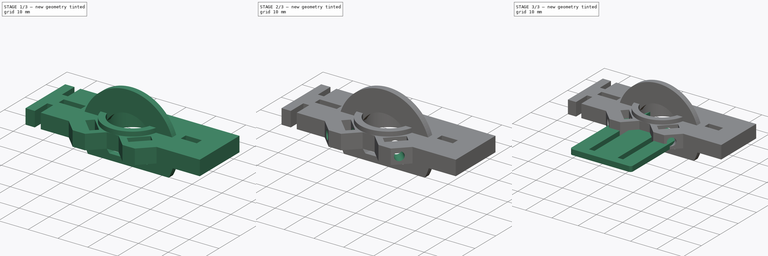
[diagram: build sequence overview — one tinted view per stage of 3, left to right]
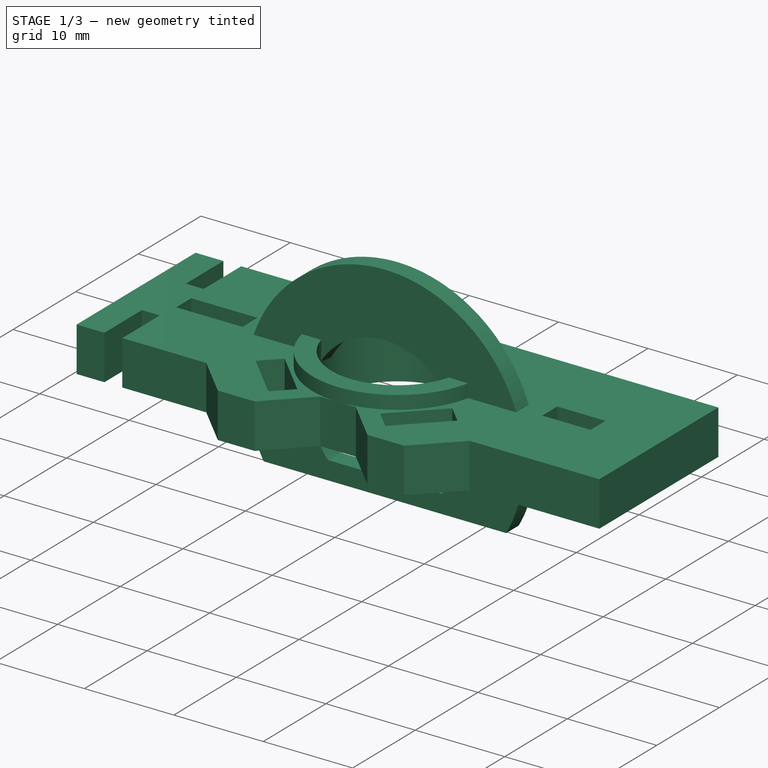
[diagram: stage 1 of 3 — iso view after this stage's code; geometry added in this stage tinted green]
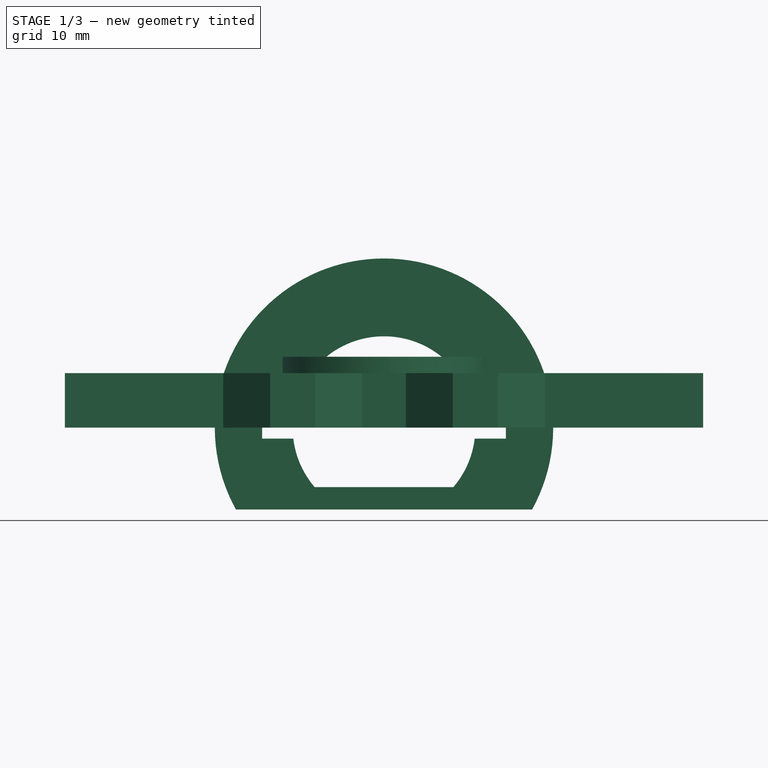
[diagram: stage 1 of 3 — front view after this stage's code; geometry added in this stage tinted green]
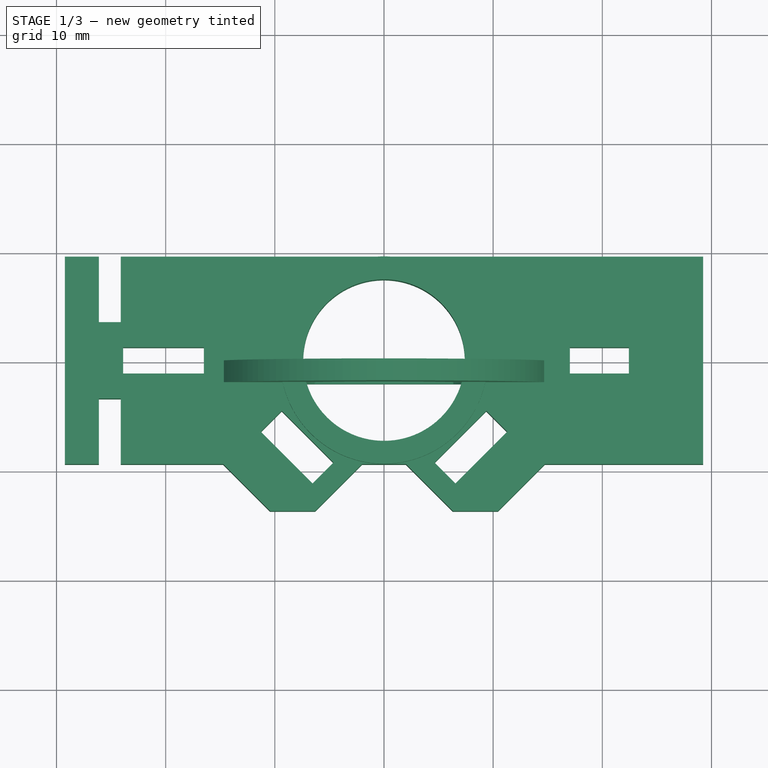
[diagram: stage 1 of 3 — top view after this stage's code; geometry added in this stage tinted green]
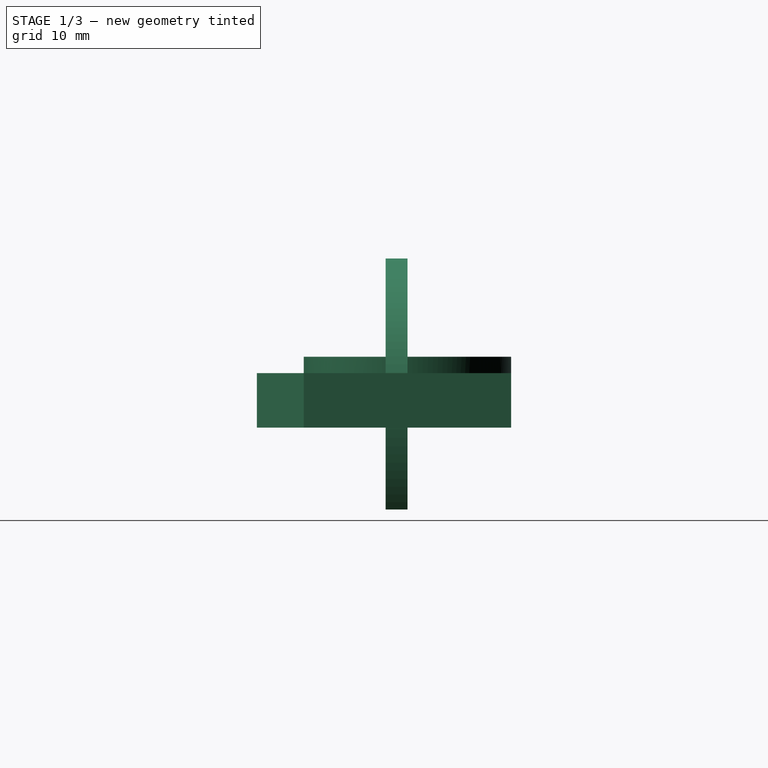
[diagram: stage 1 of 3 — right view after this stage's code; geometry added in this stage tinted green]
FCSTD DOCUMENT  (FreeCAD 0.19R24291 (Git))
Label: gilson_tip_probe
License: All rights reserved
LicenseURL: http://en.wikipedia.org/wiki/All_rights_reserved
objects: Sketcher::SketchObject×6, PartDesign::Pad×4, PartDesign::Body×3, PartDesign::Pocket×2, PartDesign::Fillet×1, PartDesign::PolarPattern×1
note: 24 computed .brp shape members not serialized (recipe doc carries the construction recipe); baked Part::Feature solids carry a one-line shape summary decoded from their .brp

FEATURE [PartDesign::Body] Body  label="holder_optostop"
  Group = -> [Sketch,Pad,Fillet]
  Origin = -> Origin
  Tip = -> Fillet
FEATURE [Sketcher::SketchObject] Sketch001
  FullyConstrained = true
  MapMode = 5
  Support = -> [XY_Plane001]
  sketch-geometry (46):
    g0: LineSegment StartX=-29.23 StartY=9.5 StartZ=0 EndX=29.23 EndY=9.5 EndZ=0
    g1: LineSegment StartX=29.23 StartY=9.5 StartZ=0 EndX=29.23 EndY=-9.5 EndZ=0
    g2: LineSegment StartX=29.23 StartY=-9.5 StartZ=0 EndX=-29.23 EndY=-9.5 EndZ=0
    g3: LineSegment StartX=-29.23 StartY=-9.5 StartZ=0 EndX=-29.23 EndY=9.5 EndZ=0
    g4: Circle CenterX=0 CenterY=0 CenterZ=0 NormalX=0 NormalY=0 NormalZ=1 AngleXU=0 Radius=7.4
    g5: LineSegment StartX=0 StartY=0 StartZ=0 EndX=12.114 EndY=-12.114 EndZ=0
    g6: LineSegment StartX=14.7279 StartY=-9.5 StartZ=0 EndX=8.36396 EndY=-15.864 EndZ=0
    g7: LineSegment StartX=8.36396 StartY=-15.864 StartZ=0 EndX=2 EndY=-9.5 EndZ=0
    g8: LineSegment StartX=-2 StartY=-9.5 StartZ=0 EndX=-8.36396 EndY=-15.864 EndZ=0
    g9: LineSegment StartX=-8.36396 StartY=-15.864 StartZ=0 EndX=-14.7279 EndY=-9.5 EndZ=0
    g10: LineSegment StartX=-8.36396 StartY=-15.864 StartZ=0 EndX=-14.7279 EndY=-9.5 EndZ=0
    g11: LineSegment StartX=-2 StartY=-9.5 StartZ=0 EndX=2 EndY=-9.5 EndZ=0
    g12: LineSegment StartX=14.7279 StartY=-9.5 StartZ=0 EndX=29.23 EndY=-9.5 EndZ=0
    g13: LineSegment StartX=4.63155 StartY=-9.36916 StartZ=0 EndX=9.36916 EndY=-4.63155 EndZ=0
    g14: LineSegment StartX=9.36916 StartY=-4.63155 StartZ=0 EndX=11.2784 EndY=-6.54074 EndZ=0
    g15: LineSegment StartX=11.2784 StartY=-6.54074 StartZ=0 EndX=6.54074 EndY=-11.2784 EndZ=0
    g16: LineSegment StartX=6.54074 StartY=-11.2784 StartZ=0 EndX=4.63155 EndY=-9.36916 EndZ=0
    g17: LineSegment StartX=5.23259 StartY=-5.23259 StartZ=0 EndX=7.00036 EndY=-7.00036 EndZ=0
    g18: LineSegment StartX=-9.36916 StartY=-4.63155 StartZ=0 EndX=-4.63155 EndY=-9.36916 EndZ=0
    g19: LineSegment StartX=-4.63155 StartY=-9.36916 StartZ=0 EndX=-6.54074 EndY=-11.2784 EndZ=0
    g20: LineSegment StartX=-6.54074 StartY=-11.2784 StartZ=0 EndX=-11.2784 EndY=-6.54074 EndZ=0
    g21: LineSegment StartX=-11.2784 StartY=-6.54074 StartZ=0 EndX=-9.36916 EndY=-4.63155 EndZ=0
    g22: LineSegment StartX=17.03 StartY=1.2 StartZ=0 EndX=22.43 EndY=1.2 EndZ=0
    g23: LineSegment StartX=22.43 StartY=1.2 StartZ=0 EndX=22.43 EndY=-1.2 EndZ=0
    g24: LineSegment StartX=22.43 StartY=-1.2 StartZ=0 EndX=17.03 EndY=-1.2 EndZ=0
    g25: LineSegment StartX=17.03 StartY=-1.2 StartZ=0 EndX=17.03 EndY=1.2 EndZ=0
    g26: LineSegment StartX=-23.9 StartY=1.2 StartZ=0 EndX=-16.5 EndY=1.2 EndZ=0
    g27: LineSegment StartX=-16.5 StartY=1.2 StartZ=0 EndX=-16.5 EndY=-1.2 EndZ=0
    g28: LineSegment StartX=-16.5 StartY=-1.2 StartZ=0 EndX=-23.9 EndY=-1.2 EndZ=0
    g29: LineSegment StartX=-23.9 StartY=-1.2 StartZ=0 EndX=-23.9 EndY=1.2 EndZ=0
    g30: LineSegment StartX=-29.23 StartY=9.5 StartZ=0 EndX=-26.12 EndY=9.5 EndZ=0
    g31: LineSegment StartX=-26.12 StartY=9.5 StartZ=0 EndX=-26.12 EndY=3.5 EndZ=0
    g32: LineSegment StartX=-26.12 StartY=3.5 StartZ=0 EndX=-24.12 EndY=3.5 EndZ=0
    g33: LineSegment StartX=-24.12 StartY=3.5 StartZ=0 EndX=-24.12 EndY=9.5 EndZ=0
    g34: LineSegment StartX=-24.12 StartY=9.5 StartZ=0 EndX=29.23 EndY=9.5 EndZ=0
    g35: LineSegment StartX=-29.23 StartY=-9.5 StartZ=0 EndX=-26.12 EndY=-9.5 EndZ=0
    g36: LineSegment StartX=-26.12 StartY=-9.5 StartZ=0 EndX=-26.12 EndY=-3.5 EndZ=0
    g37: LineSegment StartX=-26.12 StartY=-3.5 StartZ=0 EndX=-24.12 EndY=-3.5 EndZ=0
    g38: LineSegment StartX=-24.12 StartY=-3.5 StartZ=0 EndX=-24.12 EndY=-9.5 EndZ=0
    g39: LineSegment StartX=-24.12 StartY=-9.5 StartZ=0 EndX=-14.7279 EndY=-9.5 EndZ=0
    g40: LineSegment StartX=6.3 StartY=-13.8 StartZ=0 EndX=10.4279 EndY=-13.8 EndZ=0
    g41: LineSegment StartX=10.4279 StartY=-13.8 StartZ=0 EndX=14.7279 EndY=-9.5 EndZ=0
    g42: LineSegment StartX=6.3 StartY=-13.8 StartZ=0 EndX=2 EndY=-9.5 EndZ=0
    g43: LineSegment StartX=-2 StartY=-9.5 StartZ=0 EndX=-6.3 EndY=-13.8 EndZ=0
    g44: LineSegment StartX=-6.3 StartY=-13.8 StartZ=0 EndX=-10.4279 EndY=-13.8 EndZ=0
    g45: LineSegment StartX=-10.4279 StartY=-13.8 StartZ=0 EndX=-14.7279 EndY=-9.5 EndZ=0
  constraints (129):
    c: Coincident(g0,g1)
    c: Coincident(g1,g2)
    c: Coincident(g2,g3)
    c: Coincident(g3,g0)
    c: Horizontal(g0)
    c: Horizontal(g2)
    c: Vertical(g1)
    c: Vertical(g3)
    c: Symmetric(g0,g2,g-1)
    c: DistanceY(g1,g1) = 19
    c: DistanceX(g0,g0) = 58.46
    c: Coincident(g4,g-1)
    c: Diameter(g4) = 14.8
    c: Coincident(g5,g4)
    c: Angle(g5) = -0.785398
    c: Coincident(g6,g7)
    c: PointOnObject(g7,g2)
    c: Coincident(g8,g9)
    c: Parallel(g8,g6)
    c: Parallel(g9,g7)
    c: Perpendicular(g5,g6) = 4.71239
    c: Perpendicular(g6,g7)
    c: Equal(g9,g6)
    c: Equal(g7,g8)
    c: Symmetric(g8,g7,g-2)
    c: Coincident(g10,g8)
    c: PointOnObject(g10,g2)
    c: PointOnObject(g10,g9)
    c: PointOnObject(g6,g2)
    c: Coincident(g11,g8)
    c: Coincident(g11,g7)
    c: Coincident(g12,g6)
    c: Coincident(g12,g1)
    c: Parallel(g8,g13)
    c: Coincident(g14,g13)
    c: Coincident(g15,g14)
    c: Coincident(g16,g15)
    c: Coincident(g16,g13)
    c: Parallel(g16,g14)
    c: Parallel(g14,g10)
    c: Distance(g15) = 6.7
    c: Distance(g14) = 2.7
    c: Symmetric(g14,g15,g5)
    c: PointOnObject(g17,g4)
    c: PointOnObject(g17,g13)
    c: PointOnObject(g17,g5)
    c: PointOnObject(g17,g5)
    c: Distance(g17) = 2.5
    c: Coincident(g18,g19)
    c: Coincident(g19,g20)
    c: Coincident(g20,g21)
    c: Coincident(g21,g18)
    c: Equal(g18,g20)
    c: Equal(g20,g13)
    c: Equal(g19,g21)
    c: Equal(g21,g16)
    c: Perpendicular(g19,g20)
    c: Parallel(g20,g10)
    c: Symmetric(g18,g13,g-2)
    c: Coincident(g22,g23)
    c: Coincident(g23,g24)
    c: Coincident(g24,g25)
    c: Coincident(g25,g22)
    c: Horizontal(g22)
    c: Horizontal(g24)
    c: Vertical(g23)
    c: DistanceX(g22,g22) = 5.4
    c: DistanceY(g23,g23) = 2.4
    c: Symmetric(g22,g24,g-1)
    c: DistanceX(g22,g0) = 6.8
    c: Coincident(g26,g27)
    c: Coincident(g27,g28)
    c: Coincident(g28,g29)
    c: Coincident(g29,g26)
    c: Horizontal(g26)
    c: Horizontal(g28)
    c: Equal(g23,g27) = 2.4
    c: DistanceX(g26,g26) = 7.4
    c: Vertical(g29)
    c: Symmetric(g26,g27,g-1)
    c: DistanceX(g0,g26) = 12.73
    c: DistanceX(g27,g4) = 16.5
    c: DistanceX(g4,g22) = 17.03
    c: Coincident(g3,g30)
    c: PointOnObject(g30,g0)
    c: Coincident(g30,g31)
    c: Vertical(g31)
    c: Coincident(g31,g32)
    c: Horizontal(g32)
    c: Coincident(g32,g33)
    c: PointOnObject(g33,g0)
    c: Vertical(g33)
    c: Coincident(g33,g34)
    c: Coincident(g34,g1)
    c: Coincident(g3,g35)
    c: PointOnObject(g35,g2)
    c: Coincident(g35,g36)
    c: Coincident(g36,g37)
    c: Horizontal(g37)
    c: Coincident(g37,g38)
    c: PointOnObject(g38,g2)
    c: Vertical(g38)
    c: Coincident(g38,g39)
    c: Coincident(g39,g10)
    c: Vertical(g36)
    c: Vertical(g36,g31)
    c: Symmetric(g37,g32,g-1)
    c: DistanceX(g37,g37) = 2
    c: DistanceY(g38,g38) = 6
    c: DistanceX(g3,g33) = 5.11
    c: DistanceX(g33,g4) = 24.12
    c: DistanceX(g11,g11) = 4
    c: PointOnObject(g40,g7)
    c: PointOnObject(g40,g6)
    c: Horizontal(g40)
    c: DistanceY(g40,g12) = 4.3
    c: Coincident(g41,g40)
    c: Coincident(g41,g12)
    c: Coincident(g42,g40)
    c: Coincident(g42,g11)
    c: Coincident(g43,g11)
    c: PointOnObject(g43,g8)
    c: Coincident(g44,g43)
    c: PointOnObject(g44,g9)
    c: Horizontal(g44)
    c: Coincident(g45,g44)
    c: Coincident(g45,g39)
    c: Horizontal(g43,g40)
    c: Distance(g6) = 9
FEATURE [PartDesign::Pad] Pad001
  Direction = (1,1,1)
  Length = 5
  Length2 = 100
  Profile = -> Sketch001
  Type = 0
FEATURE [Sketcher::SketchObject] Sketch002
  ExternalGeometry = -> [Sketch001]
  FullyConstrained = true
  MapMode = 5
  Support = -> [XY_Plane001]
  sketch-geometry (2):
    g0: Circle CenterX=0 CenterY=0 CenterZ=0 NormalX=0 NormalY=0 NormalZ=1 AngleXU=0 Radius=7.4
    g1: Circle CenterX=0 CenterY=0 CenterZ=0 NormalX=0 NormalY=0 NormalZ=1 AngleXU=0 Radius=9.5
  constraints (4):
    c: Coincident(g1,g0)
    c: Tangent(g1,g-4)
    c: Coincident(g0,g-1)
    c: Equal(g0,g-5)
FEATURE [PartDesign::Pad] Pad002
  BaseFeature = -> Pad001
  Direction = (1,1,1)
  Length = 6.5
  Length2 = 100
  Profile = -> Sketch002
  Type = 0
FEATURE [PartDesign::Body] Body001  label="gilson_probe_fastener"
  Group = -> [Sketch001,Pad001,Sketch002,Pad002,Sketch003,Pocket,PolarPattern,Sketch004,Pocket001]
  Origin = -> Origin001
  Tip = -> Pocket001
FEATURE [Sketcher::SketchObject] Sketch005
  FullyConstrained = true
  MapMode = 5
  Placement = pos=(0,0,0) rot=(1,0,0;1.5708rad)
  Support = -> [XZ_Plane002]
  sketch-geometry (17):
    g0: Circle CenterX=0 CenterY=0 CenterZ=0 NormalX=0 NormalY=0 NormalZ=1 AngleXU=0 Radius=15.5
    g1: Circle CenterX=0 CenterY=0 CenterZ=0 NormalX=0 NormalY=0 NormalZ=1 AngleXU=0 Radius=8.37
    g2: ArcOfCircle CenterX=0 CenterY=0 CenterZ=0 NormalX=0 NormalY=0 NormalZ=1 AngleXU=0 Radius=8.37 StartAngle=0.11976 EndAngle=3.02183
    g3: LineSegment StartX=-11.17 StartY=1 StartZ=0 EndX=-8.31005 EndY=1 EndZ=0
    g4: LineSegment StartX=-8.31005 StartY=1 StartZ=0 EndX=-8.31005 EndY=-1 EndZ=0
    g5: LineSegment StartX=-8.31005 StartY=-1 StartZ=0 EndX=-11.17 EndY=-1 EndZ=0
    g6: LineSegment StartX=-11.17 StartY=-1 StartZ=0 EndX=-11.17 EndY=1 EndZ=0
    g7: LineSegment StartX=11.17 StartY=1 StartZ=0 EndX=8.31005 EndY=1 EndZ=0
    g8: LineSegment StartX=8.31005 StartY=1 StartZ=0 EndX=8.31005 EndY=-1 EndZ=0
    g9: LineSegment StartX=8.31005 StartY=-1 StartZ=0 EndX=11.17 EndY=-1 EndZ=0
    g10: LineSegment StartX=11.17 StartY=-1 StartZ=0 EndX=11.17 EndY=1 EndZ=0
    g11: ArcOfCircle CenterX=0 CenterY=0 CenterZ=0 NormalX=0 NormalY=0 NormalZ=1 AngleXU=0 Radius=8.37 StartAngle=3.26135 EndAngle=3.85067
    g12: ArcOfCircle CenterX=0 CenterY=2e-16 CenterZ=0 NormalX=0 NormalY=0 NormalZ=1 AngleXU=0 Radius=8.37 StartAngle=5.57411 EndAngle=6.16342
    g13: GeomPoint X=0 Y=15.5 Z=0
    g14: ArcOfCircle CenterX=0 CenterY=0 CenterZ=0 NormalX=0 NormalY=0 NormalZ=1 AngleXU=0 Radius=15.5 StartAngle=5.77811 EndAngle=9.92985
    g15: LineSegment StartX=13.5647 StartY=-7.5 StartZ=0 EndX=-13.5647 EndY=-7.5 EndZ=0
    g16: LineSegment StartX=-6.35251 StartY=-5.45 StartZ=0 EndX=6.35251 EndY=-5.45 EndZ=0
  constraints (45):
    c: Coincident(g0,g-1)
    c: Diameter(g0) = 31
    c: Coincident(g1,g0)
    c: Diameter(g1) = 16.74
    c: Coincident(g2,g0)
    c: PointOnObject(g2,g1)
    c: Coincident(g3,g4)
    c: Coincident(g4,g5)
    c: Coincident(g5,g6)
    c: Coincident(g6,g3)
    c: Horizontal(g3)
    c: Horizontal(g5)
    c: Vertical(g6)
    c: Coincident(g7,g8)
    c: Coincident(g8,g9)
    c: Coincident(g9,g10)
    c: Coincident(g10,g7)
    c: Horizontal(g7)
    c: Horizontal(g9)
    c: Vertical(g10)
    c: Coincident(g7,g2)
    c: Coincident(g3,g2)
    c: Symmetric(g2,g8,g-1)
    c: Equal(g4,g8)
    c: Symmetric(g7,g3,g-2)
    c: DistanceX(g3,g7) = 22.34
    c: DistanceY(g6,g6) = 2
    c: Vertical(g4)
    c: Coincident(g11,g0)
    c: Coincident(g11,g5)
    c: PointOnObject(g12,g-2)
    c: Coincident(g12,g9)
    c: PointOnObject(g12,g1)
    c: PointOnObject(g13,g-2)
    c: PointOnObject(g13,g0)
    c: Coincident(g14,g2)
    c: PointOnObject(g14,g0)
    c: Horizontal(g15)
    c: Coincident(g15,g14)
    c: Coincident(g15,g14)
    c: DistanceY(g14,g13) = 23
    c: Coincident(g16,g11)
    c: Coincident(g16,g12)
    c: Horizontal(g16)
    c: DistanceY(g14,g12) = 2.05
FEATURE [PartDesign::Pad] Pad003
  Direction = (1,1,1)
  Length = 2
  Length2 = 100
  Placement = pos=(0,0,0) rot=(1,0,0;1.5708rad)
  Profile = -> Sketch005
  Type = 0
FEATURE [PartDesign::Body] Body002  label="probe_holder_rings"
  Group = -> [Sketch005,Pad003]
  Origin = -> Origin002
  Tip = -> Pad003
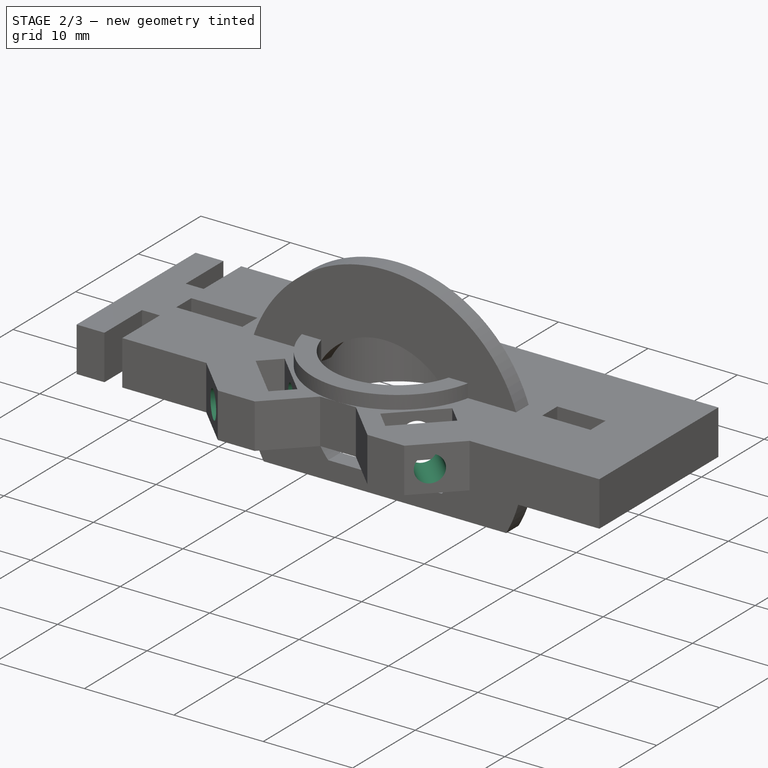
[diagram: stage 2 of 3 — iso view after this stage's code; geometry added in this stage tinted green]
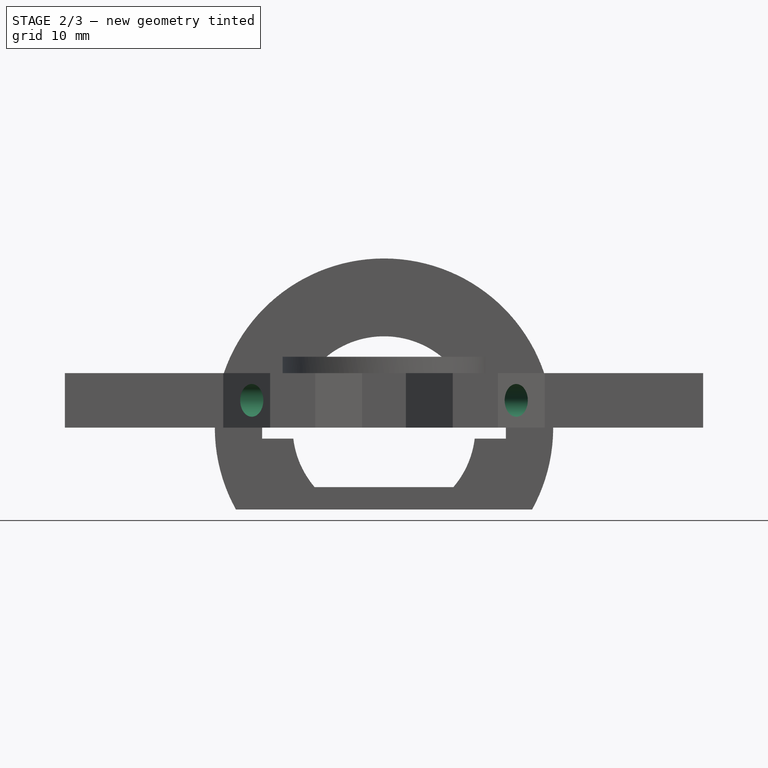
[diagram: stage 2 of 3 — front view after this stage's code; geometry added in this stage tinted green]
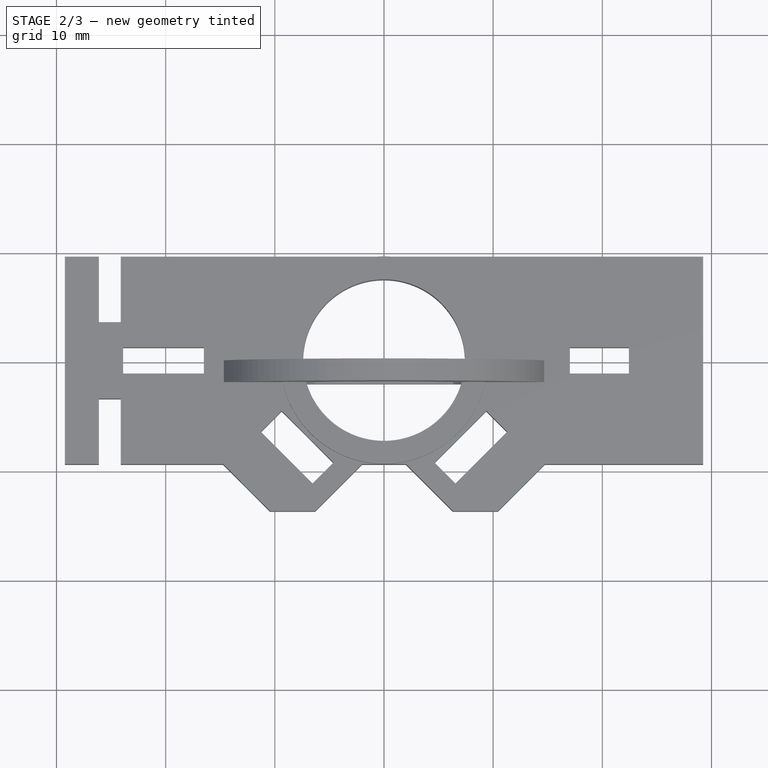
[diagram: stage 2 of 3 — top view after this stage's code; geometry added in this stage tinted green]
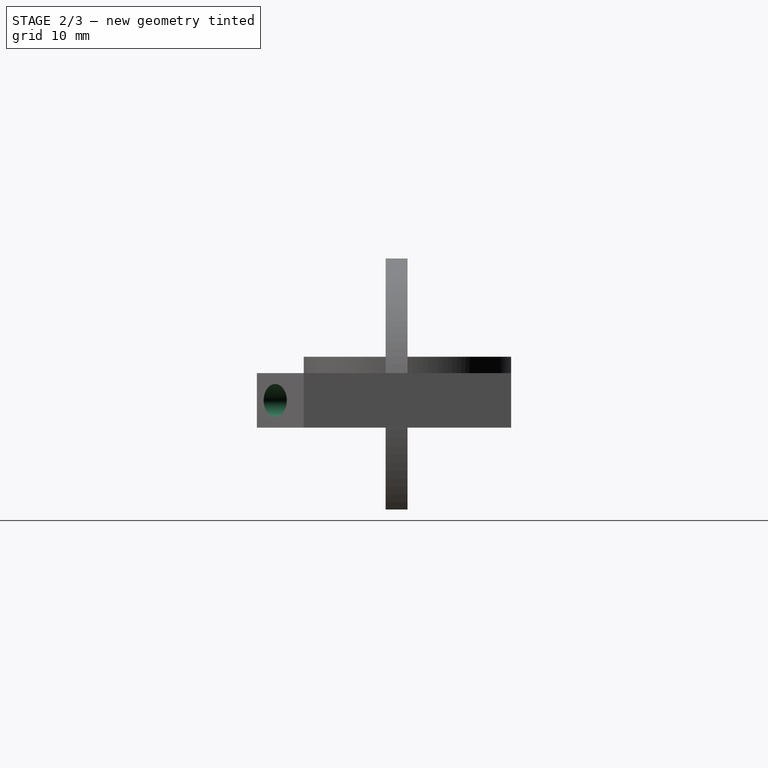
[diagram: stage 2 of 3 — right view after this stage's code; geometry added in this stage tinted green]
FEATURE [Sketcher::SketchObject] Sketch003
  AttachmentOffset = pos=(0,0,0) rot=(0,1,0;0.785398rad)
  FullyConstrained = true
  MapMode = 5
  Placement = pos=(0,0,0) rot=(0.862856,0.357407,0.357407;1.71777rad)
  Support = -> [XZ_Plane001]
  sketch-geometry (1):
    g0: Circle CenterX=0 CenterY=2.5 CenterZ=0 NormalX=0 NormalY=0 NormalZ=1 AngleXU=0 Radius=1.5
  constraints (3):
    c: PointOnObject(g0,g-2)
    c: Diameter(g0) = 3
    c: DistanceY(g0) = 2.5
FEATURE [PartDesign::Pocket] Pocket
  BaseFeature = -> Pad002
  Length = 5
  Length2 = 100
  Profile = -> Sketch003
  Reversed = true
  Type = 1
FEATURE [PartDesign::PolarPattern] PolarPattern
  Angle = 90
  Axis = -> Sketch003 [V_Axis]
  BaseFeature = -> Pocket
  Occurrences = 2
  Originals = -> [Pocket]
  Reversed = true
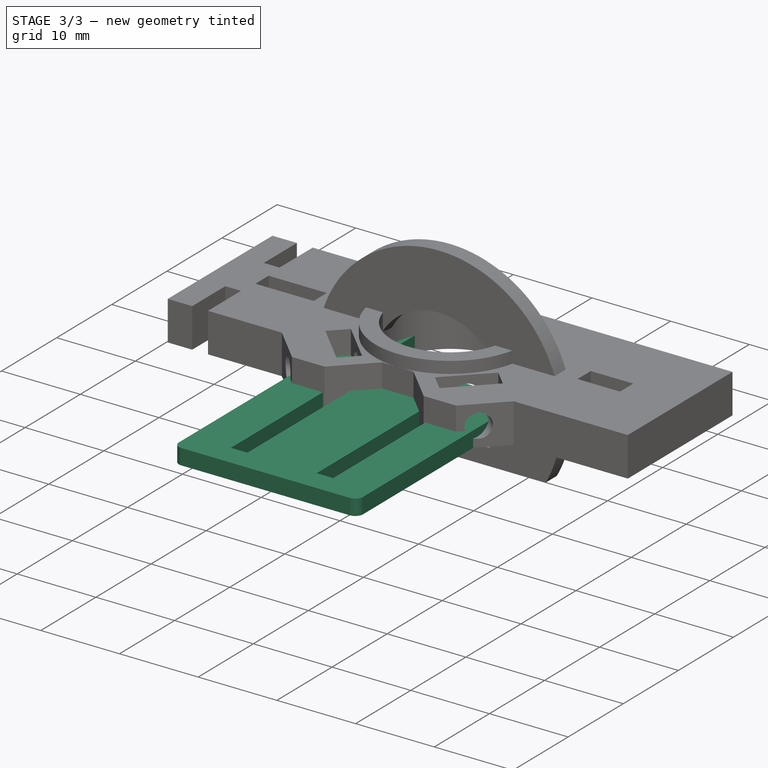
[diagram: stage 3 of 3 — iso view after this stage's code; geometry added in this stage tinted green]
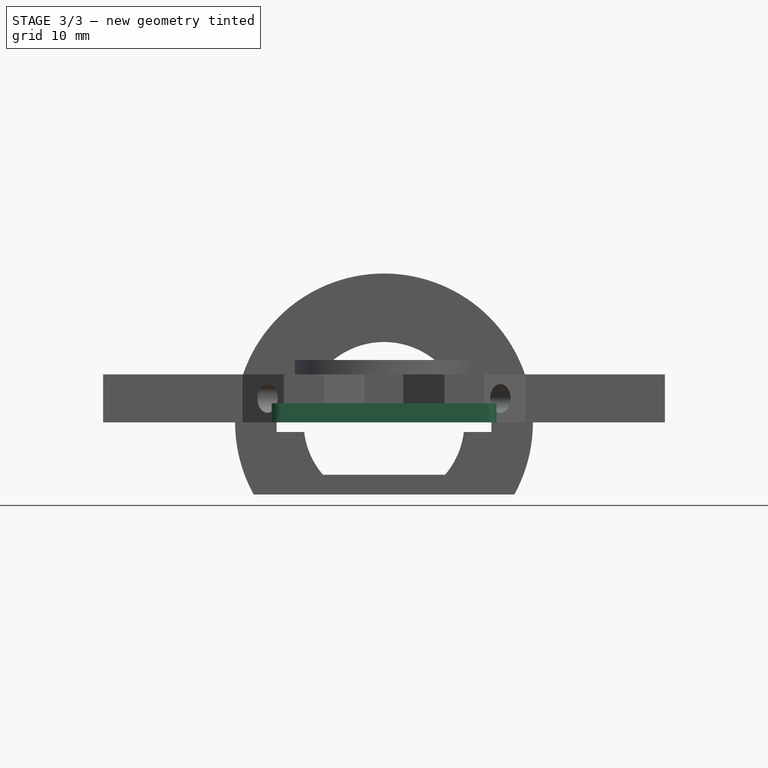
[diagram: stage 3 of 3 — front view after this stage's code; geometry added in this stage tinted green]
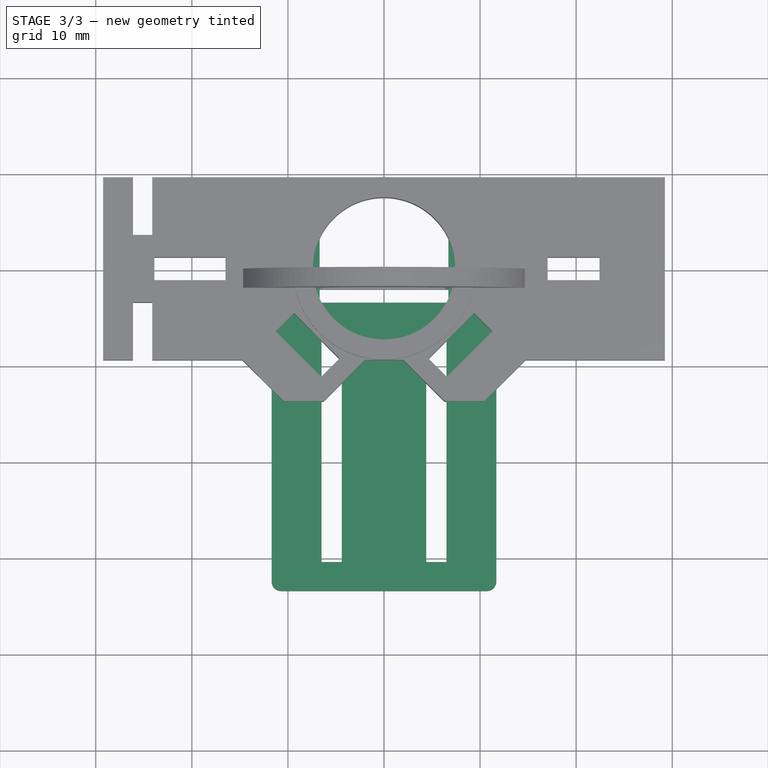
[diagram: stage 3 of 3 — top view after this stage's code; geometry added in this stage tinted green]
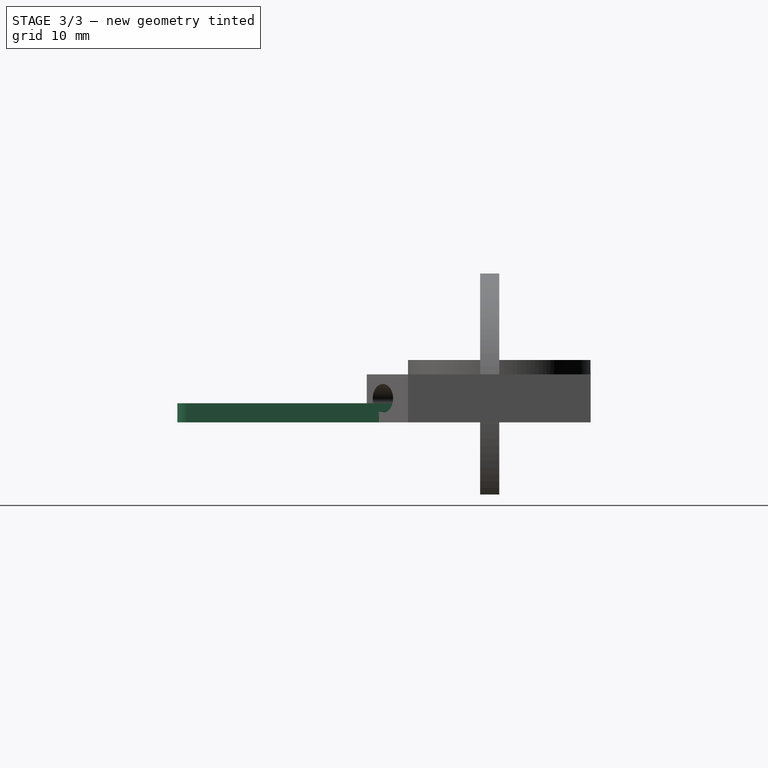
[diagram: stage 3 of 3 — right view after this stage's code; geometry added in this stage tinted green]
FEATURE [Sketcher::SketchObject] Sketch
  FullyConstrained = false
  MapMode = 5
  Support = -> [XY_Plane]
  sketch-geometry (28):
    g0: Circle CenterX=-9.2 CenterY=0 CenterZ=0 NormalX=0 NormalY=0 NormalZ=1 AngleXU=0 Radius=1.5
    g1: Circle CenterX=9.2 CenterY=0 CenterZ=0 NormalX=0 NormalY=0 NormalZ=1 AngleXU=0 Radius=1.5
    g2: LineSegment StartX=-6.5 StartY=-6.5 StartZ=0 EndX=-4.4 EndY=-6.5 EndZ=0
    g3: LineSegment StartX=-4.4 StartY=-6.5 StartZ=0 EndX=-4.4 EndY=-30.5 EndZ=0
    g4: LineSegment StartX=-4.4 StartY=-30.5 StartZ=0 EndX=-6.5 EndY=-30.5 EndZ=0
    g5: LineSegment StartX=-6.5 StartY=-30.5 StartZ=0 EndX=-6.5 EndY=-6.5 EndZ=0
    g6: LineSegment StartX=4.4 StartY=-6.5 StartZ=0 EndX=6.5 EndY=-6.5 EndZ=0
    g7: LineSegment StartX=6.5 StartY=-6.5 StartZ=0 EndX=6.5 EndY=-30.5 EndZ=0
    g8: LineSegment StartX=6.5 StartY=-30.5 StartZ=0 EndX=4.4 EndY=-30.5 EndZ=0
    g9: LineSegment StartX=4.4 StartY=-30.5 StartZ=0 EndX=4.4 EndY=-6.5 EndZ=0
    g10: LineSegment StartX=-11.7 StartY=3.5 StartZ=0 EndX=-6.7 EndY=3.5 EndZ=0
    g11: LineSegment StartX=-6.7 StartY=3.5 StartZ=0 EndX=-6.7 EndY=-3.5 EndZ=0
    g12: LineSegment StartX=-6.7 StartY=-3.5 StartZ=0 EndX=-11.7 EndY=-3.5 EndZ=0
    g13: LineSegment StartX=-11.7 StartY=-3.5 StartZ=0 EndX=-11.7 EndY=3.5 EndZ=0
    g14: LineSegment StartX=-11.7 StartY=-3.5 StartZ=0 EndX=-6.7 EndY=3.5 EndZ=0
    g15: LineSegment StartX=-6.7 StartY=-3.5 StartZ=0 EndX=-11.7 EndY=3.5 EndZ=0
    g16: GeomPoint X=-9.2 Y=0 Z=0
    g17: LineSegment StartX=6.7 StartY=3.5 StartZ=0 EndX=11.7 EndY=3.5 EndZ=0
    g18: LineSegment StartX=11.7 StartY=3.5 StartZ=0 EndX=11.7 EndY=-3.5 EndZ=0
    g19: LineSegment StartX=11.7 StartY=-3.5 StartZ=0 EndX=6.7 EndY=-3.5 EndZ=0
    g20: LineSegment StartX=6.7 StartY=-3.5 StartZ=0 EndX=6.7 EndY=3.5 EndZ=0
    g21: LineSegment StartX=6.7 StartY=-3.5 StartZ=0 EndX=11.7 EndY=3.5 EndZ=0
    g22: LineSegment StartX=11.7 StartY=-3.5 StartZ=0 EndX=6.7 EndY=3.5 EndZ=0
    g23: GeomPoint X=9.2 Y=0 Z=0
    g24: LineSegment StartX=-6.7 StartY=-3.5 StartZ=0 EndX=6.7 EndY=-3.5 EndZ=0
    g25: LineSegment StartX=-11.7 StartY=-3.5 StartZ=0 EndX=-11.7 EndY=-33.5 EndZ=0
    g26: LineSegment StartX=-11.7 StartY=-33.5 StartZ=0 EndX=11.7 EndY=-33.5 EndZ=0
    g27: LineSegment StartX=11.7 StartY=-33.5 StartZ=0 EndX=11.7 EndY=-3.5 EndZ=0
  constraints (72):
    c: PointOnObject(g0,g-1)
    c: Equal(g1,g0)
    c: DistanceX(g0,g1) = 18.4
    c: Diameter(g1) = 3
    c: Coincident(g2,g3)
    c: Coincident(g3,g4)
    c: Coincident(g4,g5)
    c: Coincident(g5,g2)
    c: Horizontal(g2)
    c: Horizontal(g4)
    c: Vertical(g3)
    c: Vertical(g5)
    c: Coincident(g6,g7)
    c: Coincident(g7,g8)
    c: Coincident(g8,g9)
    c: Coincident(g9,g6)
    c: Horizontal(g6)
    c: Horizontal(g8)
    c: Vertical(g7)
    c: Vertical(g9)
    c: Equal(g5,g9)
    c: Equal(g6,g2)
    c: Symmetric(g0,g1,g-1)
    c: Symmetric(g6,g2,g-2)
    c: DistanceX(g4,g4) = 2.1
    c: DistanceX(g2,g6) = 13
    c: Coincident(g10,g11)
    c: Coincident(g11,g12)
    c: Coincident(g12,g13)
    c: Coincident(g13,g10)
    c: Horizontal(g10)
    c: Horizontal(g12)
    c: Vertical(g11)
    c: Vertical(g13)
    c: Coincident(g14,g12)
    c: Coincident(g14,g10)
    c: Coincident(g15,g11)
    c: Coincident(g15,g10)
    c: PointOnObject(g16,g14)
    c: PointOnObject(g16,g15)
    c: Coincident(g17,g18)
    c: Coincident(g18,g19)
    c: Coincident(g19,g20)
    c: Coincident(g20,g17)
    c: Horizontal(g17)
    c: Horizontal(g19)
    c: Vertical(g18)
    c: Vertical(g20)
    c: Coincident(g21,g19)
    c: Coincident(g21,g17)
    c: Coincident(g22,g18)
    c: Coincident(g22,g17)
    c: PointOnObject(g23,g21)
    c: PointOnObject(g23,g22)
    c: Coincident(g16,g0)
    c: Coincident(g23,g1)
    c: Equal(g17,g10)
    c: Coincident(g24,g11)
    c: Coincident(g24,g20)
    c: Horizontal(g24)
    c: DistanceX(g10,g10) = 5
    c: DistanceY(g13,g13) = 7
    c: Coincident(g13,g25)
    c: Vertical(g25)
    c: Coincident(g25,g26)
    c: Horizontal(g26)
    c: Coincident(g26,g27)
    c: Coincident(g27,g18)
    c: Vertical(g27)
    c: DistanceY(g26,g7) = 3
    c: DistanceY(g6,g18) = 3
    c: DistanceY(g25,g13) = 30
FEATURE [PartDesign::Pad] Pad
  Direction = (1,1,1)
  Length = 2
  Length2 = 100
  Profile = -> Sketch
  Type = 0
FEATURE [PartDesign::Fillet] Fillet
  Base = -> Pad [Edge26,Edge23]
  BaseFeature = -> Pad
  Radius = 1
  SupportTransform = false
FEATURE [Sketcher::SketchObject] Sketch004
  AttachmentOffset = pos=(0,0,-30) rot=(0,0,1;0rad)
  ExternalGeometry = -> [Sketch001]
  FullyConstrained = true
  MapMode = 5
  Placement = pos=(-30,6.7e-15,-6.7e-15) rot=(0.57735,0.57735,0.57735;2.0944rad)
  Support = -> [YZ_Plane001]
  sketch-geometry (3):
    g0: Circle CenterX=-11.65 CenterY=2.5 CenterZ=0 NormalX=0 NormalY=0 NormalZ=1 AngleXU=0 Radius=1.05
    g1: Circle CenterX=11.65 CenterY=2.5 CenterZ=0 NormalX=0 NormalY=0 NormalZ=1 AngleXU=0 Radius=1.05
    g2: Circle CenterX=-11.65 CenterY=2.5 CenterZ=0 NormalX=0 NormalY=0 NormalZ=1 AngleXU=0 Radius=3.29735
  constraints (7):
    c: Equal(g1,g0)
    c: Coincident(g2,g0)
    c: PointOnObject(g-3,g2)
    c: PointOnObject(g-3,g2)
    c: Diameter(g0) = 2.1
    c: Symmetric(g1,g0,g-2)
    c: DistanceY(g0) = 2.5
FEATURE [PartDesign::Pocket] Pocket001
  BaseFeature = -> PolarPattern
  Length = 15
  Length2 = 100
  Profile = -> Sketch004
  Reversed = true
  Type = 0
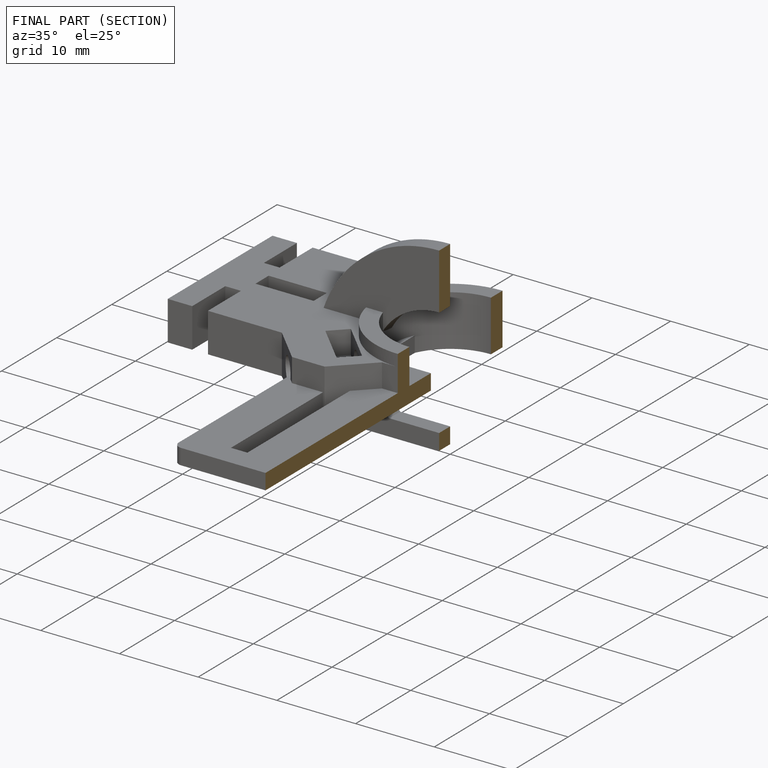
[diagram: finished part — half-section view (interior)]
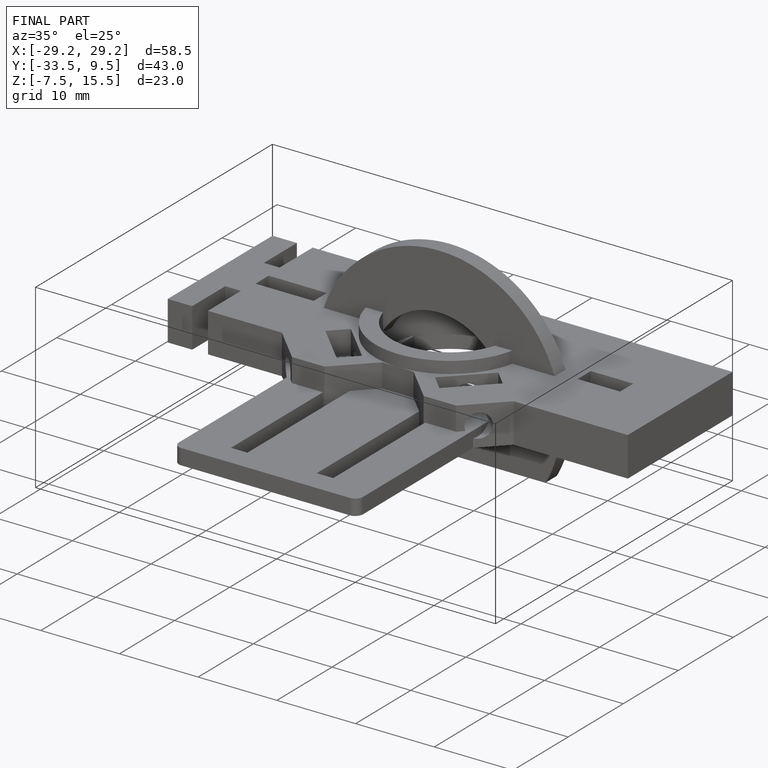
[diagram: finished part — iso view with bounding-box wireframe]
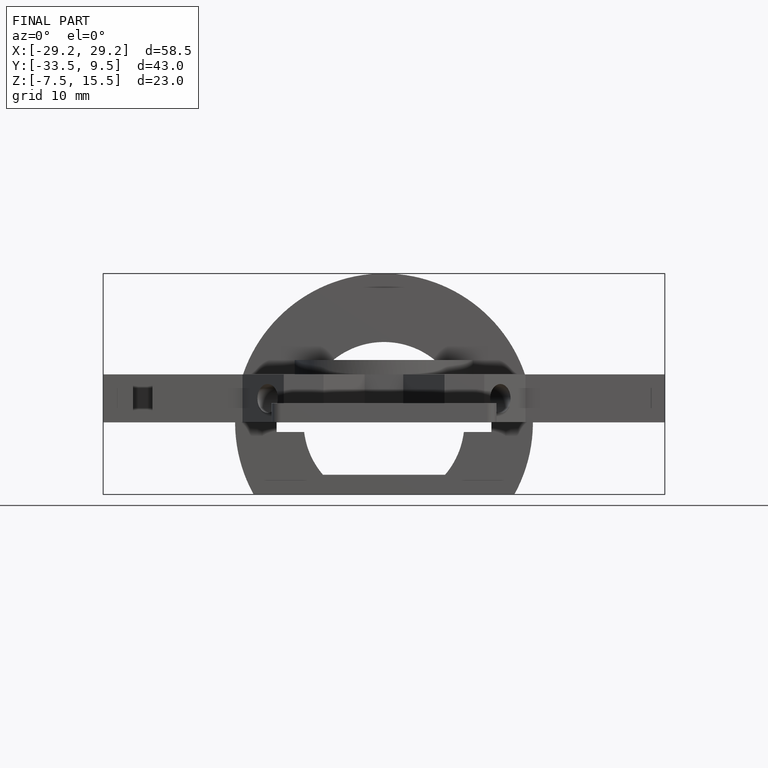
[diagram: finished part — front view with bounding-box wireframe]
